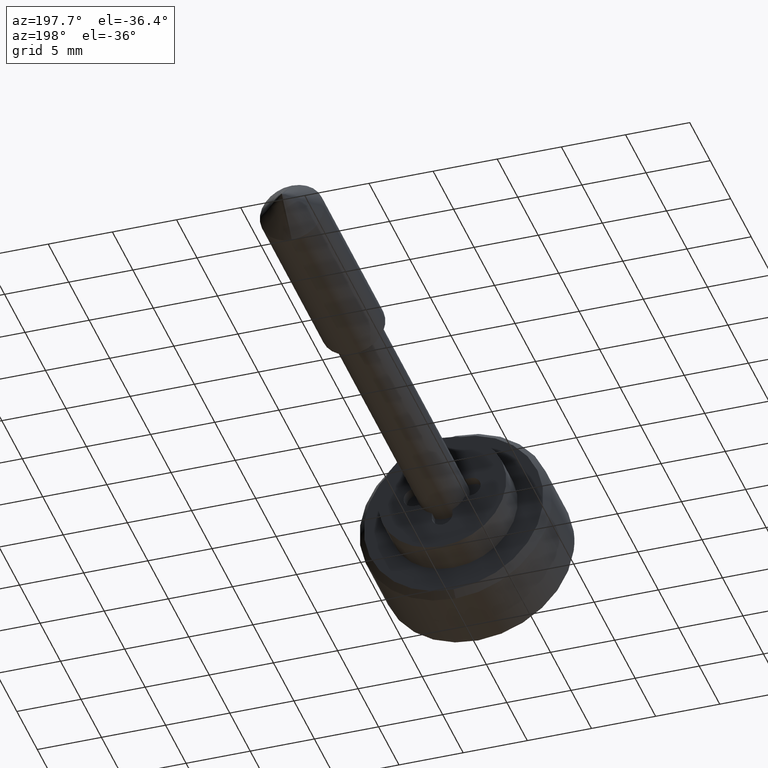
[diagram: clean part render]
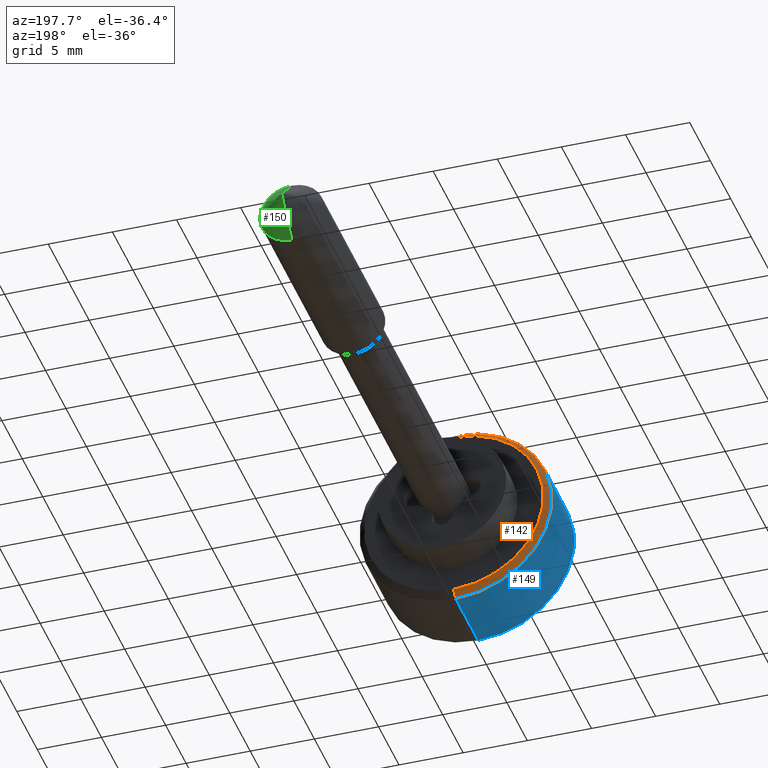
[diagram: same view with three faces highlighted in distinct colors, each labeled with its STEP entity id]
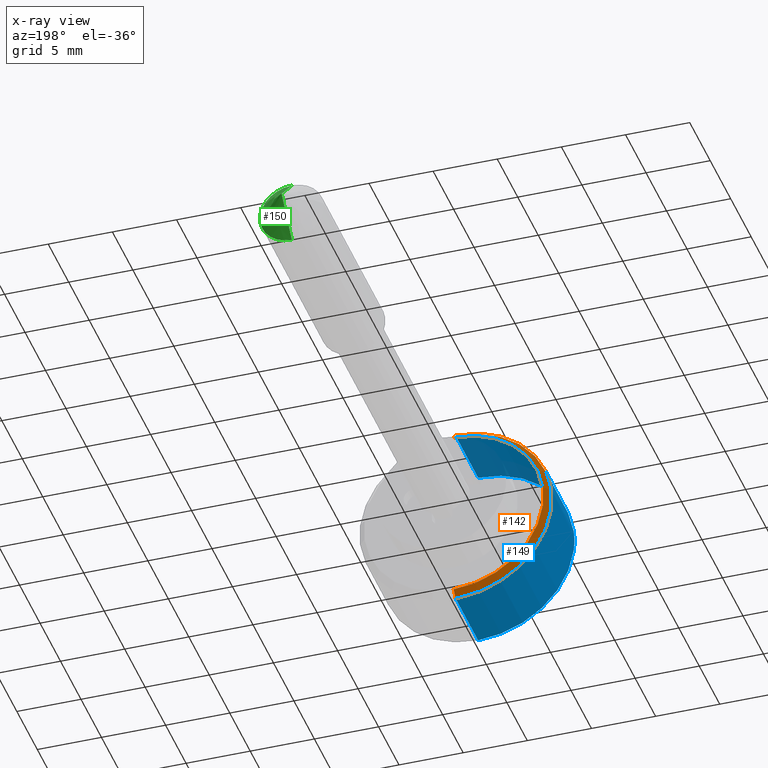
[diagram: x-ray of the same camera — body ghosted, the three highlighted faces saturated]
A machine part, auxiliary view with three faces highlighted in distinct colors.
The next image is the same camera in x-ray (body ghosted, the three faces saturated) — at least one of them is partly hidden behind the body in this view.
Their STEP definitions:

[orange] entity #142 — the highlighted face is a freeform B-spline surface patch.
#142=ADVANCED_FACE('',(#460),#459,.T.);
#459=( BOUNDED_SURFACE() B_SPLINE_SURFACE( 2,1,((#746,#747),(#748,#749),(#750,#751),(#752,#753),(#754,#755)), .UNSPECIFIED.,.F.,.F.,.F.) B_SPLINE_SURFACE_WITH_KNOTS((3,2,3),(2,2),(0.00000000000E+00,5.00000000000E-01,1.00000000000E+00),(0.00000000000E+00,1.00000000000E+00), .UNSPECIFIED. ) GEOMETRIC_REPRESENTATION_ITEM() RATIONAL_B_SPLINE_SURFACE(((1.00000000000E+00,1.00000000000E+00),(7.07106781187E-01,7.07106781187E-01),(1.00000000000E+00,1.00000000000E+00),(7.07106781187E-01,7.07106781187E-01),(1.00000000000E+00,1.00000000000E+00))) REPRESENTATION_ITEM('') SURFACE() );
#460=FACE_OUTER_BOUND('',#756,.T.);
#746=CARTESIAN_POINT('',(5.00000000000E+00,0.00000000000E+00,0.00000000000E+00));
#747=CARTESIAN_POINT('',(-5.60660171780E+00,3.89680225306E-15,1.06066017178E+01));
#748=CARTESIAN_POINT('',(5.00000000000E+00,0.00000000000E+00,0.00000000000E+00));
#749=CARTESIAN_POINT('',(-5.60660171780E+00,1.06066017178E+01,1.06066017178E+01));
#750=CARTESIAN_POINT('',(5.00000000000E+00,0.00000000000E+00,0.00000000000E+00));
#751=CARTESIAN_POINT('',(-5.60660171780E+00,1.06066017178E+01,-3.24733521088E-15));
#752=CARTESIAN_POINT('',(5.00000000000E+00,0.00000000000E+00,0.00000000000E+00));
#753=CARTESIAN_POINT('',(-5.60660171780E+00,1.06066017178E+01,-1.06066017178E+01));
#754=CARTESIAN_POINT('',(5.00000000000E+00,0.00000000000E+00,0.00000000000E+00));
#755=CARTESIAN_POINT('',(-5.60660171780E+00,-2.59786816871E-15,-1.06066017178E+01));
#756=EDGE_LOOP('',(#976,#977,#978,#979));
#976=ORIENTED_EDGE('',*,*,#1108,.F.);
#977=ORIENTED_EDGE('',*,*,#1109,.F.);
#978=ORIENTED_EDGE('',*,*,#1080,.F.);
#979=ORIENTED_EDGE('',*,*,#1110,.T.);
#1080=EDGE_CURVE('',#1484,#1485,#1486,.T.);
#1108=EDGE_CURVE('',#1674,#1675,#1676,.T.);
#1109=EDGE_CURVE('',#1485,#1674,#1682,.T.);
#1110=EDGE_CURVE('',#1484,#1675,#1688,.T.);
#1484=VERTEX_POINT('',#1991);
#1485=VERTEX_POINT('',#1992);
#1486=CIRCLE('',#1996,7.00000000000E+00);
#1674=VERTEX_POINT('',#2121);
#1675=VERTEX_POINT('',#2122);
#1676=CIRCLE('',#2126,7.50000000000E+00);
#1682=(BOUNDED_CURVE() B_SPLINE_CURVE(1,(#2127,#2128),.UNSPECIFIED.,.F.,.F.) B_SPLINE_CURVE_WITH_KNOTS((2,2),(6.59966328740E-01,7.07106782442E-01),.UNSPECIFIED.) CURVE() GEOMETRIC_REPRESENTATION_ITEM() RATIONAL_B_SPLINE_CURVE((1.00000000000E+00,1.00000000000E+00)) REPRESENTATION_ITEM('') );
#1688=(BOUNDED_CURVE() B_SPLINE_CURVE(1,(#2129,#2130),.UNSPECIFIED.,.F.,.F.) B_SPLINE_CURVE_WITH_KNOTS((2,2),(6.59966329001E-01,7.07106780467E-01),.UNSPECIFIED.) CURVE() GEOMETRIC_REPRESENTATION_ITEM() RATIONAL_B_SPLINE_CURVE((7.50000000000E-01,7.50000000000E-01)) REPRESENTATION_ITEM('') );
#1991=CARTESIAN_POINT('',(-2.00000000000E+00,0.00000000000E+00,-7.00000000000E+00));
#1992=CARTESIAN_POINT('',(-2.00000000000E+00,2.96059473233E-16,7.00000000000E+00));
#1993=CARTESIAN_POINT('',(-2.00000000000E+00,0.00000000000E+00,0.00000000000E+00));
#1994=DIRECTION('',(1.00000000000E+00,0.00000000000E+00,0.00000000000E+00));
#1995=DIRECTION('',(0.00000000000E+00,-1.22460635382E-16,-1.00000000000E+00));
#1996=AXIS2_PLACEMENT_3D('',#1993,#1994,#1995);
#2121=CARTESIAN_POINT('',(-2.50000000000E+00,1.77635683940E-15,7.50000000000E+00));
#2122=CARTESIAN_POINT('',(-2.50000000000E+00,0.00000000000E+00,-7.50000000000E+00));
#2123=CARTESIAN_POINT('',(-2.50000000000E+00,0.00000000000E+00,0.00000000000E+00));
#2124=DIRECTION('',(-1.00000000000E+00,0.00000000000E+00,-0.00000000000E+00));
#2125=DIRECTION('',(0.00000000000E+00,-1.22460635382E-16,-1.00000000000E+00));
#2126=AXIS2_PLACEMENT_3D('',#2123,#2124,#2125);
#2127=CARTESIAN_POINT('',(-1.99999999610E+00,2.57175827678E-15,6.99999999610E+00));
#2128=CARTESIAN_POINT('',(-2.50000001332E+00,2.75545530297E-15,7.50000001332E+00));
#2129=CARTESIAN_POINT('',(-1.99999999887E+00,-2.73544997202E-15,-6.99999999887E+00));
#2130=CARTESIAN_POINT('',(-2.49999999237E+00,-2.93083925323E-15,-7.49999999237E+00));

[blue] entity #149 — the highlighted cylindrical surface (partial cylindrical patch) has radius 7.5 mm, axis along (0, -1, -0).
#149=ADVANCED_FACE('',(#530),#529,.T.);
#529=CYLINDRICAL_SURFACE('',#796,7.50000000000E+00);
#530=FACE_OUTER_BOUND('',#797,.T.);
#793=CARTESIAN_POINT('',(-1.00200000000E+03,0.00000000000E+00,0.00000000000E+00));
#794=DIRECTION('',(-1.00000000000E+00,-0.00000000000E+00,-0.00000000000E+00));
#795=DIRECTION('',(0.00000000000E+00,1.45473230946E-15,-1.00000000000E+00));
#796=AXIS2_PLACEMENT_3D('',#793,#794,#795);
#797=EDGE_LOOP('',(#1006,#1007,#1008,#1009,#1010,#1011));
#1006=ORIENTED_EDGE('',*,*,#1108,.T.);
#1007=ORIENTED_EDGE('',*,*,#1116,.T.);
#1008=ORIENTED_EDGE('',*,*,#1096,.F.);
#1009=ORIENTED_EDGE('',*,*,#1102,.T.);
#1010=ORIENTED_EDGE('',*,*,#1107,.F.);
#1011=ORIENTED_EDGE('',*,*,#1117,.F.);
#1096=EDGE_CURVE('',#1596,#1597,#1598,.T.);
#1102=EDGE_CURVE('',#1596,#1629,#1637,.T.);
#1107=EDGE_CURVE('',#1661,#1629,#1668,.T.);
#1108=EDGE_CURVE('',#1674,#1675,#1676,.T.);
#1116=EDGE_CURVE('',#1675,#1597,#1724,.T.);
#1117=EDGE_CURVE('',#1674,#1661,#1730,.T.);
#1596=VERTEX_POINT('',#2069);
#1597=VERTEX_POINT('',#2070);
#1598=CIRCLE('',#2074,7.50000000000E+00);
#1629=VERTEX_POINT('',#2091);
#1637=CIRCLE('',#2099,7.50000000000E+00);
#1661=VERTEX_POINT('',#2112);
#1668=CIRCLE('',#2120,7.50000000000E+00);
#1674=VERTEX_POINT('',#2121);
#1675=VERTEX_POINT('',#2122);
#1676=CIRCLE('',#2126,7.50000000000E+00);
#1724=(BOUNDED_CURVE() B_SPLINE_CURVE(1,(#2143,#2144),.UNSPECIFIED.,.F.,.F.) B_SPLINE_CURVE_WITH_KNOTS((2,2),(8.33333283663E-02,9.16666668285E-01),.UNSPECIFIED.) CURVE() GEOMETRIC_REPRESENTATION_ITEM() RATIONAL_B_SPLINE_CURVE((1.00000000000E+00,1.00000000000E+00)) REPRESENTATION_ITEM('') );
#1730=(BOUNDED_CURVE() B_SPLINE_CURVE(1,(#2145,#2146),.UNSPECIFIED.,.F.,.F.) B_SPLINE_CURVE_WITH_KNOTS((2,2),(8.33333333333E-02,9.16666666666E-01),.UNSPECIFIED.) CURVE() GEOMETRIC_REPRESENTATION_ITEM() RATIONAL_B_SPLINE_CURVE((7.50000000000E-01,7.50000000000E-01)) REPRESENTATION_ITEM('') );
#2069=CARTESIAN_POINT('',(-7.99990000000E+00,7.44580418759E+00,-9.00000000000E-01));
#2070=CARTESIAN_POINT('',(-7.99990000000E+00,3.78811229071E-10,-7.50000000000E+00));
#2071=CARTESIAN_POINT('',(-7.99990000000E+00,0.00000000000E+00,0.00000000000E+00));
#2072=DIRECTION('',(-1.00000000000E+00,0.00000000000E+00,0.00000000000E+00));
#2073=DIRECTION('',(-0.00000000000E+00,9.92773891679E-01,-1.20000000000E-01));
#2074=AXIS2_PLACEMENT_3D('',#2071,#2072,#2073);
#2091=CARTESIAN_POINT('',(-7.99990000000E+00,7.44580418759E+00,9.00000000000E-01));
#2096=CARTESIAN_POINT('',(-7.99990000000E+00,0.00000000000E+00,0.00000000000E+00));
#2097=DIRECTION('',(1.00000000000E+00,0.00000000000E+00,-0.00000000000E+00));
#2098=DIRECTION('',(-0.00000000000E+00,-0.00000000000E+00,-1.00000000000E+00));
#2099=AXIS2_PLACEMENT_3D('',#2096,#2097,#2098);
#2112=CARTESIAN_POINT('',(-7.99990000000E+00,1.86247740040E-06,7.50000000000E+00));
#2117=CARTESIAN_POINT('',(-7.99990000000E+00,0.00000000000E+00,0.00000000000E+00));
#2118=DIRECTION('',(-1.00000000000E+00,0.00000000000E+00,0.00000000000E+00));
#2119=DIRECTION('',(-0.00000000000E+00,-0.00000000000E+00,-1.00000000000E+00));
#2120=AXIS2_PLACEMENT_3D('',#2117,#2118,#2119);
#2121=CARTESIAN_POINT('',(-2.50000000000E+00,1.77635683940E-15,7.50000000000E+00));
#2122=CARTESIAN_POINT('',(-2.50000000000E+00,0.00000000000E+00,-7.50000000000E+00));
#2123=CARTESIAN_POINT('',(-2.50000000000E+00,0.00000000000E+00,0.00000000000E+00));
#2124=DIRECTION('',(-1.00000000000E+00,0.00000000000E+00,-0.00000000000E+00));
#2125=DIRECTION('',(0.00000000000E+00,-1.22460635382E-16,-1.00000000000E+00));
#2126=AXIS2_PLACEMENT_3D('',#2123,#2124,#2125);
#2143=CARTESIAN_POINT('',(-2.49999996722E+00,1.09104923210E-14,-7.50000000000E+00));
#2144=CARTESIAN_POINT('',(-7.99990001068E+00,1.09104923210E-14,-7.50000000000E+00));
#2145=CARTESIAN_POINT('',(-2.50000000000E+00,-1.06581410364E-14,7.50000000000E+00));
#2146=CARTESIAN_POINT('',(-7.99990000000E+00,-1.06581410364E-14,7.50000000000E+00));

[green] entity #150 — the highlighted face is a freeform B-spline surface patch.
#150=ADVANCED_FACE('',(#540),#539,.T.);
#539=( BOUNDED_SURFACE() B_SPLINE_SURFACE( 2,1,((#798,#799),(#800,#801),(#802,#803),(#804,#805),(#806,#807)), .UNSPECIFIED.,.F.,.F.,.F.) B_SPLINE_SURFACE_WITH_KNOTS((3,2,3),(2,2),(0.00000000000E+00,5.00000000000E-01,1.00000000000E+00),(0.00000000000E+00,1.00000000000E+00), .UNSPECIFIED. ) GEOMETRIC_REPRESENTATION_ITEM() RATIONAL_B_SPLINE_SURFACE(((1.00000000000E+00,1.00000000000E+00),(7.07106781187E-01,7.07106781187E-01),(1.00000000000E+00,1.00000000000E+00),(7.07106781187E-01,7.07106781187E-01),(1.00000000000E+00,1.00000000000E+00))) REPRESENTATION_ITEM('') SURFACE() );
#540=FACE_OUTER_BOUND('',#808,.T.);
#798=CARTESIAN_POINT('',(4.00000000000E+01,0.00000000000E+00,0.00000000000E+00));
#799=CARTESIAN_POINT('',(3.75000000000E+01,-6.12323399574E-16,-2.50000000000E+00));
#800=CARTESIAN_POINT('',(4.00000000000E+01,0.00000000000E+00,0.00000000000E+00));
#801=CARTESIAN_POINT('',(3.75000000000E+01,-2.50000000000E+00,-2.50000000000E+00));
#802=CARTESIAN_POINT('',(4.00000000000E+01,0.00000000000E+00,0.00000000000E+00));
#803=CARTESIAN_POINT('',(3.75000000000E+01,-2.50000000000E+00,4.59242549680E-16));
#804=CARTESIAN_POINT('',(4.00000000000E+01,0.00000000000E+00,0.00000000000E+00));
#805=CARTESIAN_POINT('',(3.75000000000E+01,-2.50000000000E+00,2.50000000000E+00));
#806=CARTESIAN_POINT('',(4.00000000000E+01,0.00000000000E+00,0.00000000000E+00));
#807=CARTESIAN_POINT('',(3.75000000000E+01,3.06161699787E-16,2.50000000000E+00));
#808=EDGE_LOOP('',(#1012,#1013,#1014));
#1012=ORIENTED_EDGE('',*,*,#1118,.F.);
#1013=ORIENTED_EDGE('',*,*,#1119,.F.);
#1014=ORIENTED_EDGE('',*,*,#1120,.T.);
#1118=EDGE_CURVE('',#1736,#1737,#1738,.T.);
#1119=EDGE_CURVE('',#1744,#1736,#1745,.T.);
#1120=EDGE_CURVE('',#1744,#1737,#1751,.T.);
#1736=VERTEX_POINT('',#2147);
#1737=VERTEX_POINT('',#2148);
#1738=CIRCLE('',#2152,2.50000000000E+00);
#1744=VERTEX_POINT('',#2153);
#1745=(BOUNDED_CURVE() B_SPLINE_CURVE(1,(#2154,#2155),.UNSPECIFIED.,.F.,.F.) B_SPLINE_CURVE_WITH_KNOTS((2,2),(0.00000000000E+00,1.00000000000E+00),.UNSPECIFIED.) CURVE() GEOMETRIC_REPRESENTATION_ITEM() RATIONAL_B_SPLINE_CURVE((1.00000000000E+00,1.00000000000E+00)) REPRESENTATION_ITEM('') );
#1751=(BOUNDED_CURVE() B_SPLINE_CURVE(1,(#2156,#2157),.UNSPECIFIED.,.F.,.F.) B_SPLINE_CURVE_WITH_KNOTS((2,2),(0.00000000000E+00,1.00000000000E+00),.UNSPECIFIED.) CURVE() GEOMETRIC_REPRESENTATION_ITEM() RATIONAL_B_SPLINE_CURVE((7.50000000000E-01,7.50000000000E-01)) REPRESENTATION_ITEM('') );
#2147=CARTESIAN_POINT('',(3.75000000000E+01,1.48029736617E-16,-2.50000000000E+00));
#2148=CARTESIAN_POINT('',(3.75000000000E+01,0.00000000000E+00,2.50000000000E+00));
#2149=CARTESIAN_POINT('',(3.75000000000E+01,0.00000000000E+00,0.00000000000E+00));
#2150=DIRECTION('',(-1.00000000000E+00,0.00000000000E+00,0.00000000000E+00));
#2151=DIRECTION('',(0.00000000000E+00,-1.22460635382E-16,1.00000000000E+00));
#2152=AXIS2_PLACEMENT_3D('',#2149,#2150,#2151);
#2153=CARTESIAN_POINT('',(4.00000000000E+01,0.00000000000E+00,6.73533494602E-16));
#2154=CARTESIAN_POINT('',(4.00000000000E+01,0.00000000000E+00,0.00000000000E+00));
#2155=CARTESIAN_POINT('',(3.75000000000E+01,-6.12303176911E-16,-2.50000000000E+00));
#2156=CARTESIAN_POINT('',(4.00000000000E+01,0.00000000000E+00,0.00000000000E+00));
#2157=CARTESIAN_POINT('',(3.75000000000E+01,7.40148683083E-16,2.50000000000E+00));